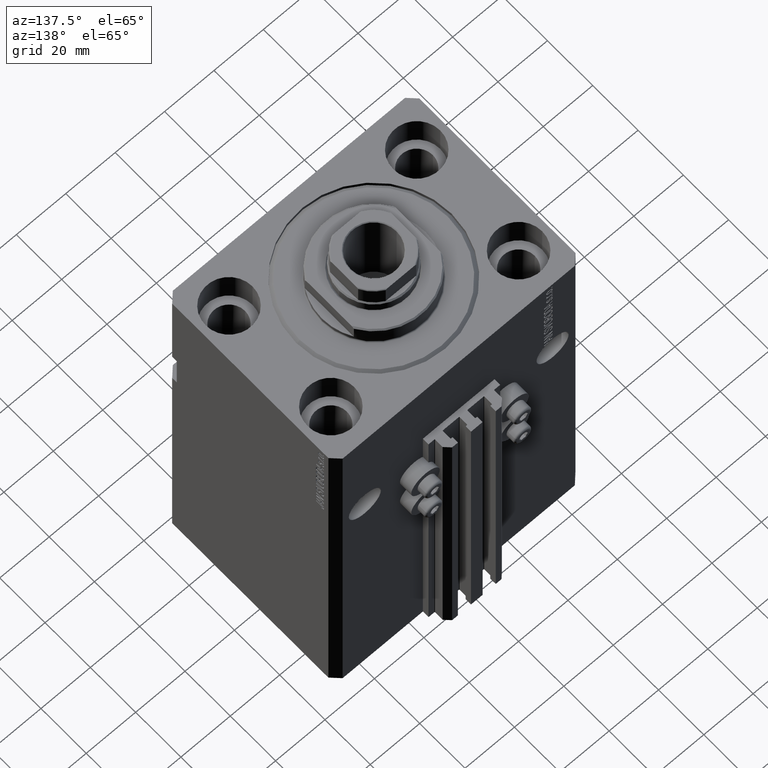
[diagram: clean part render]
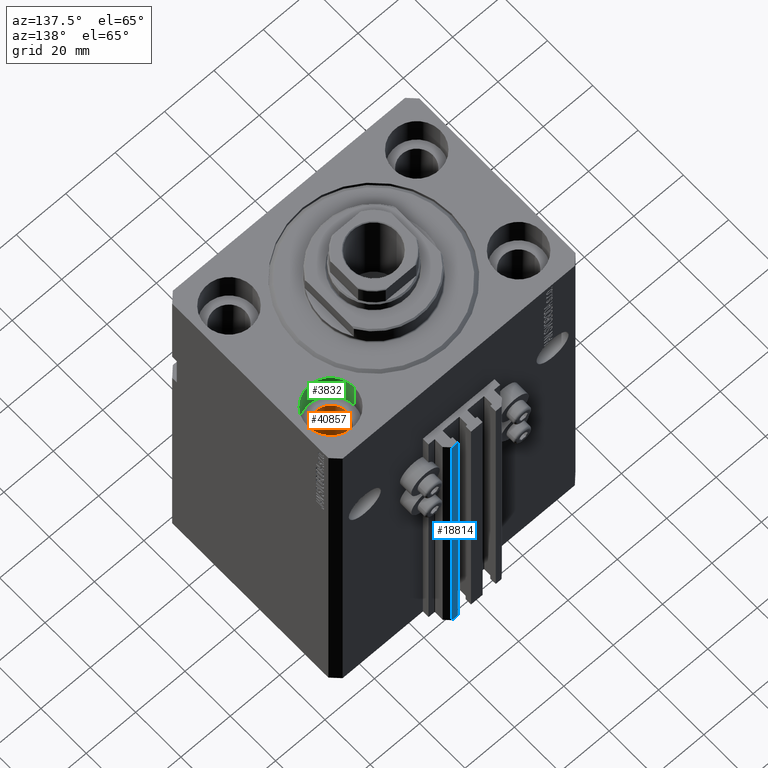
[diagram: same view with three faces highlighted in distinct colors, each labeled with its STEP entity id]
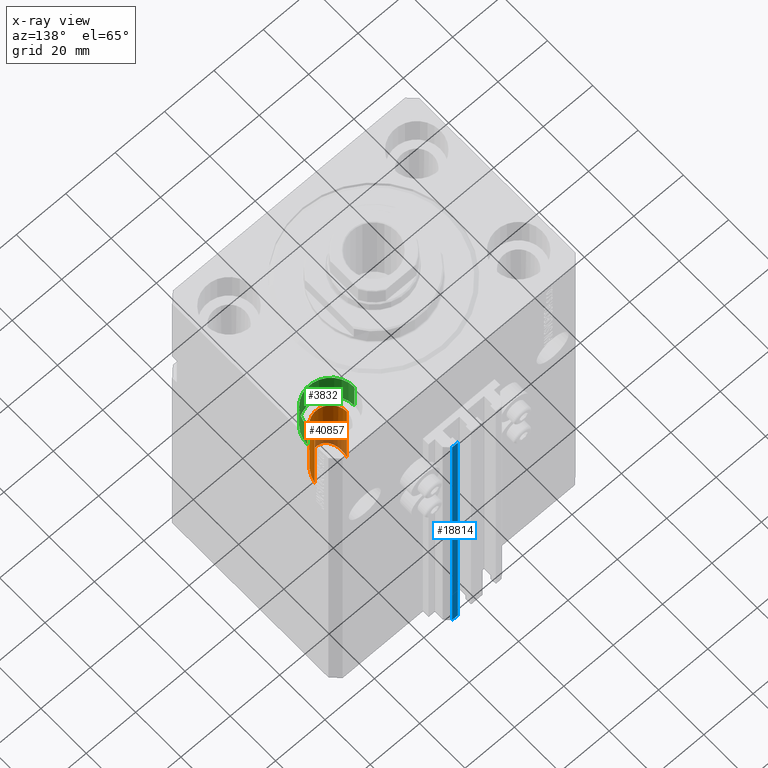
[diagram: x-ray of the same camera — body ghosted, the three highlighted faces saturated]
A machine part, auxiliary view with three faces highlighted in distinct colors.
The next image is the same camera in x-ray (body ghosted, the three faces saturated) — at least one of them is partly hidden behind the body in this view.
Their STEP definitions:

[orange] entity #40857 — the highlighted cylindrical surface (edge-blend (fillet) strip) has radius 6.5 mm, axis along (0, 0, 1).
#56 = ORIENTED_EDGE ( 'NONE', *, *, #10032, .T. ) ;
#1315 = CYLINDRICAL_SURFACE ( 'NONE', #6877, 6.499999999999999112 ) ;
#1335 = DIRECTION ( 'NONE',  ( 1.000000000000000000, 0.000000000000000000, 0.000000000000000000 ) ) ;
#1401 = VERTEX_POINT ( 'NONE', #22808 ) ;
#4964 = CARTESIAN_POINT ( 'NONE',  ( 38.00000000000000711, 22.50000000000001421, -13.00000000000000000 ) ) ;
#5242 = EDGE_CURVE ( 'NONE', #24555, #1401, #31628, .T. ) ;
#6877 = AXIS2_PLACEMENT_3D ( 'NONE', #33357, #16011, #30699 ) ;
#7012 = CARTESIAN_POINT ( 'NONE',  ( 44.50000000000000711, 22.50000000000001421, -155.0000000000000000 ) ) ;
#9513 = VERTEX_POINT ( 'NONE', #29079 ) ;
#9685 = EDGE_LOOP ( 'NONE', ( #30180, #56, #43421, #42841 ) ) ;
#10032 = EDGE_CURVE ( 'NONE', #26785, #24555, #44694, .T. ) ;
#11103 = DIRECTION ( 'NONE',  ( -0.000000000000000000, -0.000000000000000000, 1.000000000000000000 ) ) ;
#11719 = DIRECTION ( 'NONE',  ( -0.000000000000000000, -0.000000000000000000, 1.000000000000000000 ) ) ;
#14110 = CARTESIAN_POINT ( 'NONE',  ( 44.50000000000000711, 22.50000000000001421, -45.00000000000000000 ) ) ;
#14573 = CARTESIAN_POINT ( 'NONE',  ( 31.50000000000000711, 22.50000000000001421, -45.00000000000000000 ) ) ;
#15672 = CARTESIAN_POINT ( 'NONE',  ( 31.50000000000000711, 22.50000000000001421, -45.00000000000000000 ) ) ;
#16011 = DIRECTION ( 'NONE',  ( -0.000000000000000000, -0.000000000000000000, 1.000000000000000000 ) ) ;
#18852 = CARTESIAN_POINT ( 'NONE',  ( 31.50000000000000711, 22.50000000000001421, -13.00000000000000000 ) ) ;
#19459 = VECTOR ( 'NONE', #11719, 1000.000000000000000 ) ;
#22808 = CARTESIAN_POINT ( 'NONE',  ( 44.50000000000000711, 22.50000000000001421, -13.00000000000000000 ) ) ;
#24555 = VERTEX_POINT ( 'NONE', #18852 ) ;
#25654 = CARTESIAN_POINT ( 'NONE',  ( 44.50000000000001421, 9.500000000000017764, -32.00000000000000000 ) ) ;
#26660 = EDGE_CURVE ( 'NONE', #9513, #1401, #40244, .T. ) ;
#26785 = VERTEX_POINT ( 'NONE', #15672 ) ;
#28357 = VECTOR ( 'NONE', #11103, 1000.000000000000000 ) ;
#28771 = CARTESIAN_POINT ( 'NONE',  ( 31.50000000000000711, 9.500000000000015987, -32.00000000000000000 ) ) ;
#29079 = CARTESIAN_POINT ( 'NONE',  ( 44.50000000000000711, 22.50000000000001421, -45.00000000000000000 ) ) ;
#30180 = ORIENTED_EDGE ( 'NONE', *, *, #32744, .T. ) ;
#30699 = DIRECTION ( 'NONE',  ( 1.000000000000000000, 0.000000000000000000, 0.000000000000000000 ) ) ;
#31628 = CIRCLE ( 'NONE', #37786, 6.499999999999999112 ) ;
#32744 = EDGE_CURVE ( 'NONE', #9513, #26785, #46689, .T. ) ;
#33357 = CARTESIAN_POINT ( 'NONE',  ( 38.00000000000000711, 22.50000000000001421, -155.0000000000000000 ) ) ;
#34101 = CARTESIAN_POINT ( 'NONE',  ( 31.50000000000000711, 22.50000000000001421, -155.0000000000000000 ) ) ;
#34318 = FACE_OUTER_BOUND ( 'NONE', #9685, .T. ) ;
#34576 = DIRECTION ( 'NONE',  ( 0.000000000000000000, 0.000000000000000000, 1.000000000000000000 ) ) ;
#37786 = AXIS2_PLACEMENT_3D ( 'NONE', #4964, #34576, #1335 ) ;
#40244 = LINE ( 'NONE', #7012, #28357 ) ;
#40857 = ADVANCED_FACE ( 'NONE', ( #34318 ), #1315, .F. ) ;
#42841 = ORIENTED_EDGE ( 'NONE', *, *, #26660, .F. ) ;
#43421 = ORIENTED_EDGE ( 'NONE', *, *, #5242, .T. ) ;
#44694 = LINE ( 'NONE', #34101, #19459 ) ;
#46689 =( BOUNDED_CURVE ( )  B_SPLINE_CURVE ( 3, ( #14110, #25654, #28771, #14573 ),
 .UNSPECIFIED., .F., .F. ) 
 B_SPLINE_CURVE_WITH_KNOTS ( ( 4, 4 ),
 ( 4.712388980384689674, 7.853981633974482790 ),
 .UNSPECIFIED. ) 
 CURVE ( )  GEOMETRIC_REPRESENTATION_ITEM ( )  RATIONAL_B_SPLINE_CURVE ( ( 1.000000000000000000, 0.3333333333333333703, 0.3333333333333333703, 1.000000000000000000 ) ) 
 REPRESENTATION_ITEM ( '' )  );

[blue] entity #18814 — the highlighted planar face has unit normal (0, 1, 0).
#1279 = LINE ( 'NONE', #15977, #23022 ) ;
#3895 = DIRECTION ( 'NONE',  ( 0.000000000000000000, 0.000000000000000000, 1.000000000000000000 ) ) ;
#3997 = CARTESIAN_POINT ( 'NONE',  ( 9.999999999999998224, 45.50000000000002842, -155.0000000000000000 ) ) ;
#4289 = VECTOR ( 'NONE', #3895, 1000.000000000000000 ) ;
#6134 = VERTEX_POINT ( 'NONE', #32384 ) ;
#6997 = CARTESIAN_POINT ( 'NONE',  ( 9.999999999999998224, 45.50000000000002842, -155.0000000000000000 ) ) ;
#8352 = CARTESIAN_POINT ( 'NONE',  ( 7.649999999999998579, 45.50000000000002842, -33.00000000000000000 ) ) ;
#8937 = CARTESIAN_POINT ( 'NONE',  ( 7.649999999999998579, 45.50000000000002842, -155.0000000000000000 ) ) ;
#11437 = EDGE_LOOP ( 'NONE', ( #19583, #16446, #14515, #38123 ) ) ;
#11461 = VECTOR ( 'NONE', #36202, 1000.000000000000000 ) ;
#14224 = FACE_OUTER_BOUND ( 'NONE', #11437, .T. ) ;
#14515 = ORIENTED_EDGE ( 'NONE', *, *, #31194, .T. ) ;
#15823 = EDGE_CURVE ( 'NONE', #35165, #29386, #26771, .T. ) ;
#15977 = CARTESIAN_POINT ( 'NONE',  ( 9.999999999999998224, 45.50000000000002842, -33.00000000000000000 ) ) ;
#16446 = ORIENTED_EDGE ( 'NONE', *, *, #33305, .F. ) ;
#18814 = ADVANCED_FACE ( 'NONE', ( #14224 ), #39751, .T. ) ;
#19583 = ORIENTED_EDGE ( 'NONE', *, *, #27482, .F. ) ;
#23022 = VECTOR ( 'NONE', #30662, 1000.000000000000000 ) ;
#23695 = VERTEX_POINT ( 'NONE', #45513 ) ;
#25121 = LINE ( 'NONE', #39806, #11461 ) ;
#26771 = LINE ( 'NONE', #40498, #4289 ) ;
#27482 = EDGE_CURVE ( 'NONE', #6134, #29386, #1279, .T. ) ;
#29121 = DIRECTION ( 'NONE',  ( 0.000000000000000000, 1.000000000000000000, -0.000000000000000000 ) ) ;
#29386 = VERTEX_POINT ( 'NONE', #8352 ) ;
#30662 = DIRECTION ( 'NONE',  ( -1.000000000000000000, 0.000000000000000000, 0.000000000000000000 ) ) ;
#31194 = EDGE_CURVE ( 'NONE', #23695, #35165, #25121, .T. ) ;
#32384 = CARTESIAN_POINT ( 'NONE',  ( 9.999999999999998224, 45.50000000000002842, -33.00000000000000000 ) ) ;
#33305 = EDGE_CURVE ( 'NONE', #23695, #6134, #36987, .T. ) ;
#35165 = VERTEX_POINT ( 'NONE', #8937 ) ;
#36202 = DIRECTION ( 'NONE',  ( -1.000000000000000000, 0.000000000000000000, 0.000000000000000000 ) ) ;
#36987 = LINE ( 'NONE', #3997, #37733 ) ;
#37467 = DIRECTION ( 'NONE',  ( 0.000000000000000000, 0.000000000000000000, 1.000000000000000000 ) ) ;
#37733 = VECTOR ( 'NONE', #37467, 1000.000000000000000 ) ;
#38123 = ORIENTED_EDGE ( 'NONE', *, *, #15823, .T. ) ;
#39751 = PLANE ( 'NONE',  #46569 ) ;
#39806 = CARTESIAN_POINT ( 'NONE',  ( 9.999999999999998224, 45.50000000000002842, -155.0000000000000000 ) ) ;
#40231 = DIRECTION ( 'NONE',  ( 0.000000000000000000, 0.000000000000000000, 1.000000000000000000 ) ) ;
#40498 = CARTESIAN_POINT ( 'NONE',  ( 7.649999999999998579, 45.50000000000002842, -155.0000000000000000 ) ) ;
#45513 = CARTESIAN_POINT ( 'NONE',  ( 9.999999999999998224, 45.50000000000002842, -155.0000000000000000 ) ) ;
#46569 = AXIS2_PLACEMENT_3D ( 'NONE', #6997, #29121, #40231 ) ;

[green] entity #3832 — the highlighted cylindrical surface (edge-blend (fillet) strip) has radius 9.5 mm, axis along (0, 0, 1).
#3142 = ORIENTED_EDGE ( 'NONE', *, *, #37989, .F. ) ;
#3832 = ADVANCED_FACE ( 'NONE', ( #6758 ), #22167, .F. ) ;
#4095 = CARTESIAN_POINT ( 'NONE',  ( 47.50000000000000711, 22.50000000000001421, -13.00000000000000000 ) ) ;
#6758 = FACE_OUTER_BOUND ( 'NONE', #42879, .T. ) ;
#7072 = ORIENTED_EDGE ( 'NONE', *, *, #20449, .F. ) ;
#7238 = CARTESIAN_POINT ( 'NONE',  ( 38.00000000000000711, 22.50000000000001421, -13.00000000000000000 ) ) ;
#7776 = CARTESIAN_POINT ( 'NONE',  ( 28.50000000000000355, 22.50000000000001421, -13.00000000000000000 ) ) ;
#11381 = LINE ( 'NONE', #7776, #26097 ) ;
#11858 = CARTESIAN_POINT ( 'NONE',  ( 28.50000000000000355, 22.50000000000001421, -13.00000000000000000 ) ) ;
#12684 = DIRECTION ( 'NONE',  ( 1.000000000000000000, 0.000000000000000000, 0.000000000000000000 ) ) ;
#14209 = CARTESIAN_POINT ( 'NONE',  ( 38.00000000000000711, 22.50000000000001421, -13.00000000000000000 ) ) ;
#17495 = CARTESIAN_POINT ( 'NONE',  ( 47.50000000000000711, 22.50000000000001421, 0.000000000000000000 ) ) ;
#19692 = AXIS2_PLACEMENT_3D ( 'NONE', #14209, #46964, #25053 ) ;
#19803 = CARTESIAN_POINT ( 'NONE',  ( 28.50000000000000355, 22.50000000000001421, 0.000000000000000000 ) ) ;
#20151 = ORIENTED_EDGE ( 'NONE', *, *, #43457, .T. ) ;
#20449 = EDGE_CURVE ( 'NONE', #41271, #38364, #40446, .T. ) ;
#21702 = DIRECTION ( 'NONE',  ( 1.000000000000000000, 0.000000000000000000, 0.000000000000000000 ) ) ;
#22167 = CYLINDRICAL_SURFACE ( 'NONE', #46979, 9.500000000000001776 ) ;
#25053 = DIRECTION ( 'NONE',  ( 1.000000000000000000, 0.000000000000000000, 0.000000000000000000 ) ) ;
#26097 = VECTOR ( 'NONE', #32807, 1000.000000000000000 ) ;
#27130 = DIRECTION ( 'NONE',  ( 0.000000000000000000, 0.000000000000000000, 1.000000000000000000 ) ) ;
#29359 = LINE ( 'NONE', #4095, #39415 ) ;
#29380 = EDGE_CURVE ( 'NONE', #43587, #34164, #33067, .T. ) ;
#29595 = DIRECTION ( 'NONE',  ( -0.000000000000000000, -0.000000000000000000, 1.000000000000000000 ) ) ;
#32807 = DIRECTION ( 'NONE',  ( -0.000000000000000000, -0.000000000000000000, 1.000000000000000000 ) ) ;
#33067 = CIRCLE ( 'NONE', #38498, 9.500000000000001776 ) ;
#33195 = ORIENTED_EDGE ( 'NONE', *, *, #29380, .T. ) ;
#34164 = VERTEX_POINT ( 'NONE', #17495 ) ;
#34551 = CARTESIAN_POINT ( 'NONE',  ( 47.50000000000000711, 22.50000000000001421, -13.00000000000000000 ) ) ;
#36384 = DIRECTION ( 'NONE',  ( -0.000000000000000000, -0.000000000000000000, 1.000000000000000000 ) ) ;
#37989 = EDGE_CURVE ( 'NONE', #38364, #34164, #29359, .T. ) ;
#38364 = VERTEX_POINT ( 'NONE', #34551 ) ;
#38498 = AXIS2_PLACEMENT_3D ( 'NONE', #41582, #27130, #12684 ) ;
#39415 = VECTOR ( 'NONE', #29595, 1000.000000000000000 ) ;
#40446 = CIRCLE ( 'NONE', #19692, 9.500000000000001776 ) ;
#41271 = VERTEX_POINT ( 'NONE', #11858 ) ;
#41582 = CARTESIAN_POINT ( 'NONE',  ( 38.00000000000000711, 22.50000000000001421, 0.000000000000000000 ) ) ;
#42879 = EDGE_LOOP ( 'NONE', ( #7072, #20151, #33195, #3142 ) ) ;
#43457 = EDGE_CURVE ( 'NONE', #41271, #43587, #11381, .T. ) ;
#43587 = VERTEX_POINT ( 'NONE', #19803 ) ;
#46964 = DIRECTION ( 'NONE',  ( 0.000000000000000000, 0.000000000000000000, 1.000000000000000000 ) ) ;
#46979 = AXIS2_PLACEMENT_3D ( 'NONE', #7238, #36384, #21702 ) ;